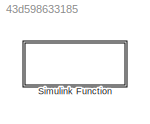
MODEL slx_43d598633185
KIND model
CONFIG AbsTol = auto
CONFIG EnableMultiTasking = off
CONFIG FixedStep = auto
CONFIG MaxStep = auto
CONFIG MinStep = auto
CONFIG RelTol = 1e-3
CONFIG SampleTimeConstraint = Unconstrained
CONFIG Solver = VariableStepAuto
CONFIG SolverName = VariableStepAuto
CONFIG StartTime = 0.0
CONFIG StopTime = 10.0
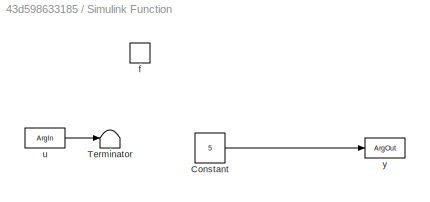
BLOCK [SubSystem] Simulink Function
  Ports = [0, 0, 0, 1]
  RequestExecContextInheritance = off
  TreatAsAtomicUnit = on
BLOCK [Constant] Simulink Function/Constant
  OutDataTypeStr = double
  Value = 5
BLOCK [Terminator] Simulink Function/Terminator
BLOCK [TriggerPort] Simulink Function/f
  FunctionName = f
  FunctionVisibility = scoped
  IsSimulinkFunction = on
  Ports = []
  StatesWhenEnabling = held
  TriggerType = function-call
  VariantControl = (inherit)
BLOCK [ArgIn] Simulink Function/u
  ArgumentName = u
  DisableCoverage = on
BLOCK [ArgOut] Simulink Function/y
  ArgumentName = y
  DisableCoverage = on
LINE Simulink Function/Constant:1 -> Simulink Function/y:1
LINE Simulink Function/u:1 -> Simulink Function/Terminator:1
